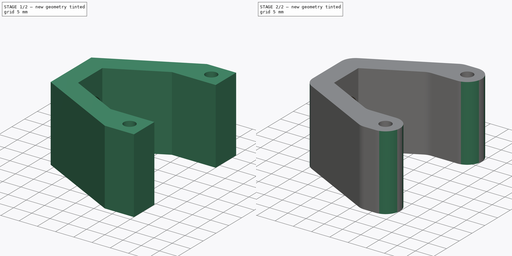
[diagram: build sequence overview — one tinted view per stage of 2, left to right]
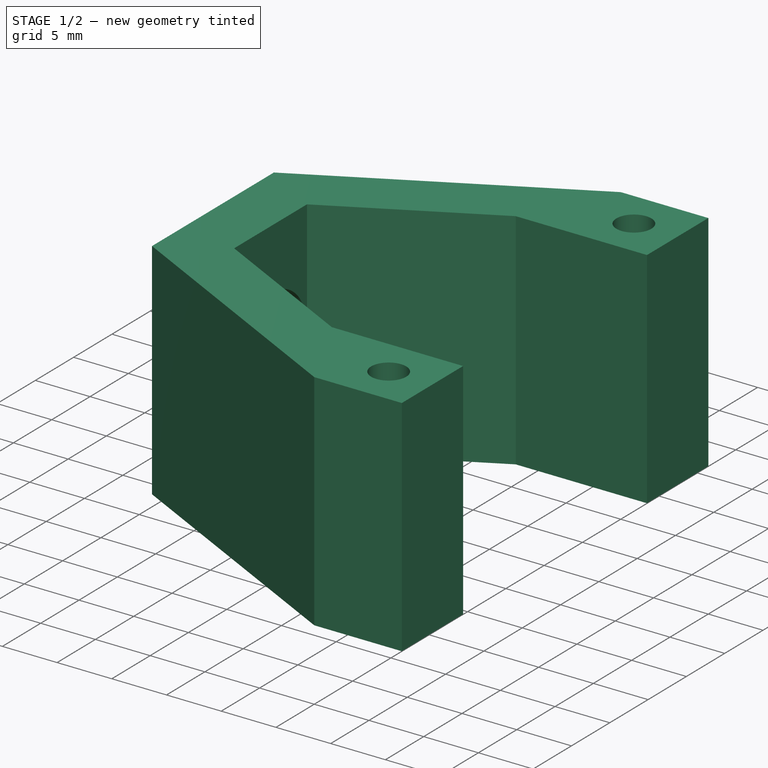
[diagram: stage 1 of 2 — iso view after this stage's code; geometry added in this stage tinted green]
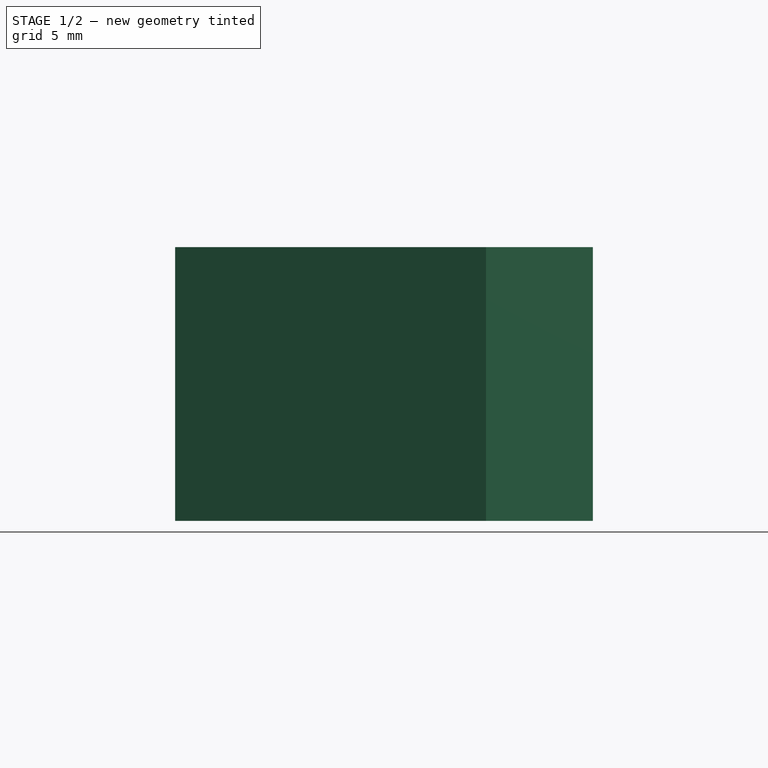
[diagram: stage 1 of 2 — front view after this stage's code; geometry added in this stage tinted green]
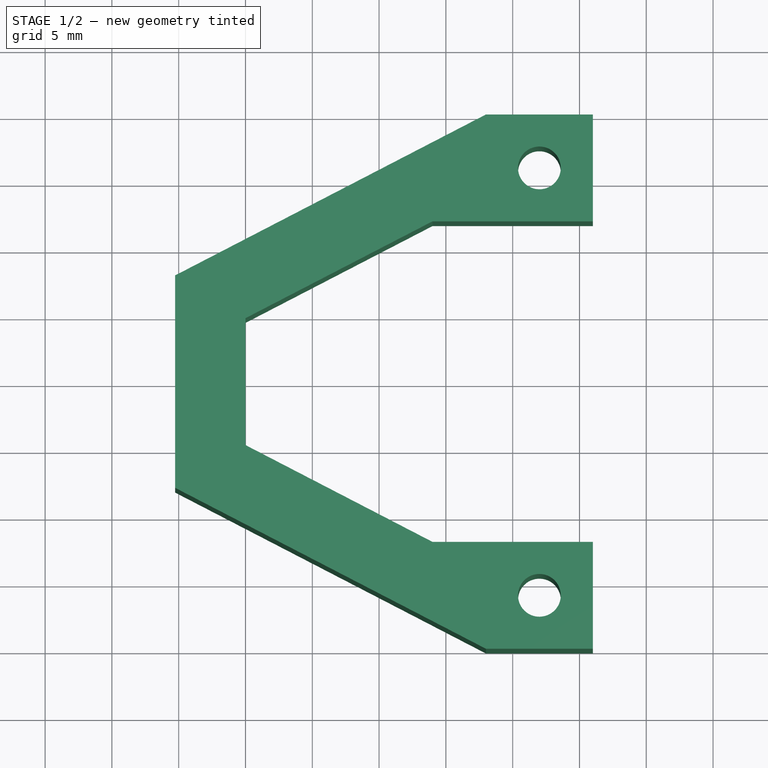
[diagram: stage 1 of 2 — top view after this stage's code; geometry added in this stage tinted green]
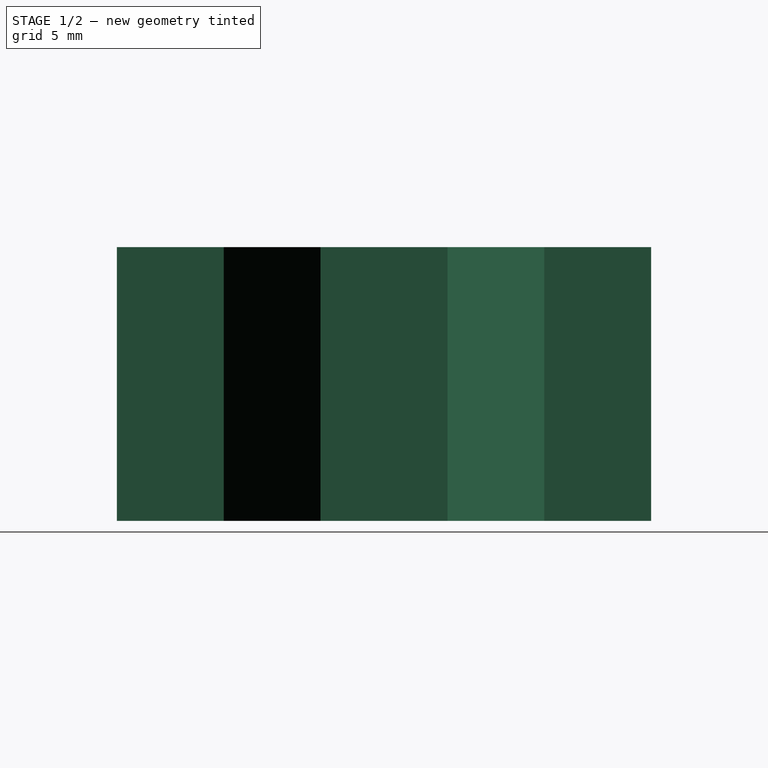
[diagram: stage 1 of 2 — right view after this stage's code; geometry added in this stage tinted green]
FCSTD DOCUMENT  (FreeCAD 0.18R14014 (Git))
Label: FrontStand_H20.5mm
License: All rights reserved
LicenseURL: http://en.wikipedia.org/wiki/All_rights_reserved
objects: Sketcher::SketchObject×2, PartDesign::Fillet×2, PartDesign::Pad×1, PartDesign::Pocket×1, PartDesign::Body×1, App::Part×1
note: 9 computed .brp shape members not serialized (recipe doc carries the construction recipe); baked Part::Feature solids carry a one-line shape summary decoded from their .brp

FEATURE [Sketcher::SketchObject] Sketch  label="FS_BaseSketch"
  MapMode = 5
  Support = -> [XY_Plane001]
  sketch-geometry (20):
    g0: LineSegment StartX=18 StartY=20 StartZ=0 EndX=26 EndY=20 EndZ=0
    g1: LineSegment StartX=26 StartY=20 StartZ=0 EndX=26 EndY=12 EndZ=0
    g2: LineSegment StartX=26 StartY=12 StartZ=0 EndX=18 EndY=12 EndZ=0
    g3: LineSegment StartX=18 StartY=20 StartZ=0 EndX=-5.26454 EndY=7.95229 EndZ=0
    g4: LineSegment StartX=0 StartY=4.75 StartZ=0 EndX=0 EndY=-4.75 EndZ=0
    g5: LineSegment StartX=-5.26454 StartY=7.95229 StartZ=0 EndX=-5.26454 EndY=-7.95229 EndZ=0
    g6: LineSegment StartX=18 StartY=-20 StartZ=0 EndX=26 EndY=-20 EndZ=0
    g7: LineSegment StartX=26 StartY=-20 StartZ=0 EndX=26 EndY=-12 EndZ=0
    g8: LineSegment StartX=26 StartY=-12 StartZ=0 EndX=18 EndY=-12 EndZ=0
    g9: LineSegment StartX=18 StartY=-20 StartZ=0 EndX=-5.26454 EndY=-7.95229 EndZ=0
    g10: Circle CenterX=22 CenterY=16 CenterZ=0 NormalX=0 NormalY=0 NormalZ=1 AngleXU=0 Radius=1.6
    g11: Circle CenterX=22 CenterY=-16 CenterZ=0 NormalX=0 NormalY=0 NormalZ=1 AngleXU=0 Radius=1.6
    g12: LineSegment [constr] StartX=22 StartY=16 StartZ=0 EndX=26 EndY=16 EndZ=0
    g13: LineSegment [constr] StartX=22 StartY=16 StartZ=0 EndX=22 EndY=20 EndZ=0
    g14: LineSegment StartX=0 StartY=4.75 StartZ=0 EndX=14 EndY=12 EndZ=0
    g15: LineSegment StartX=14 StartY=12 StartZ=0 EndX=18 EndY=12 EndZ=0
    g16: LineSegment StartX=18 StartY=-12 StartZ=0 EndX=14 EndY=-12 EndZ=0
    g17: LineSegment StartX=14 StartY=-12 StartZ=0 EndX=0 EndY=-4.75 EndZ=0
    g18: LineSegment [constr] StartX=0 StartY=4.75 StartZ=0 EndX=-2.42092 EndY=9.42488 EndZ=0
    g19: LineSegment [constr] StartX=0 StartY=4.75 StartZ=0 EndX=-5.26454 EndY=4.75 EndZ=0
  constraints (56):
    c: Horizontal(g0)
    c: Coincident(g1,g0)
    c: Vertical(g1)
    c: Coincident(g2,g1)
    c: Horizontal(g2)
    c: Coincident(g3,g0)
    c: Coincident(g5,g3)
    c: Coincident(g7,g6)
    c: Coincident(g8,g7)
    c: Coincident(g9,g6)
    c: Coincident(g5,g9)
    c: Symmetric(g1,g7,g-1)
    c: Vertical(g7)
    c: Horizontal(g8)
    c: Horizontal(g6)
    c: Equal(g0,g1)
    c: Equal(g1,g2)
    c: Equal(g2,g8)
    c: Equal(g8,g7)
    c: Equal(g7,g6)
    c: Symmetric(g4,g4,g-1)
    c: Symmetric(g3,g5,g-1)
    c: Distance(g0) = 8
    c: Distance(g0,g6) = 40
    c: PointOnObject(g4,g-2)
    c: Distance(g4,g4) = 9.5
    c: Equal(g10,g11)
    c: Radius(g10) = 1.6
    c: Coincident(g12,g10)
    c: PointOnObject(g12,g1)
    c: Coincident(g13,g10)
    c: PointOnObject(g13,g0)
    c: Equal(g13,g12)
    c: Symmetric(g10,g11,g-1)
    c: Horizontal(g12)
    c: Vertical(g13)
    c: Distance(g12) = 4
    c: Coincident(g14,g4)
    c: Coincident(g15,g14)
    c: Horizontal(g15)
    c: Coincident(g16,g8)
    c: Horizontal(g16)
    c: Coincident(g17,g16)
    c: Coincident(g17,g4)
    c: Equal(g16,g15)
    c: Distance(g15) = 4
    c: Parallel(g14,g3)
    c: Coincident(g15,g2)
    c: DistanceX(g4,g2) = 18
    c: Coincident(g18,g4)
    c: PointOnObject(g18,g3)
    c: Perpendicular(g3,g18)
    c: Coincident(g19,g4)
    c: PointOnObject(g19,g5)
    c: Perpendicular(g5,g19)
    c: Equal(g19,g18)
FEATURE [PartDesign::Pad] Pad  label="FS_BasePad"
  Length = 20.5
  Length2 = 100
  Profile = -> Sketch
  Type = 0
FEATURE [Sketcher::SketchObject] Sketch001  label="FS_SpringHoleSketch"
  ExternalGeometry = -> [Pad]
  MapMode = 5
  Placement = pos=(0,0,0) rot=(0.57735,0.57735,0.57735;2.0944rad)
  Support = -> [YZ_Plane001]
  sketch-geometry (3):
    g0: Circle CenterX=0 CenterY=10.25 CenterZ=0 NormalX=0 NormalY=0 NormalZ=1 AngleXU=0 Radius=4.75
    g1: LineSegment [constr] StartX=0 StartY=10.25 StartZ=0 EndX=0 EndY=20.5 EndZ=0
    g2: LineSegment [constr] StartX=0 StartY=10.25 StartZ=0 EndX=0 EndY=0 EndZ=0
  constraints (8):
    c: PointOnObject(g0,g-2)
    c: Coincident(g1,g0)
    c: PointOnObject(g1,g-3)
    c: Vertical(g1)
    c: Coincident(g2,g0)
    c: Coincident(g2,g-1)
    c: Equal(g1,g2)
    c: Radius(g0) = 4.75
FEATURE [PartDesign::Pocket] Pocket  label="FS_SpringHolePocket"
  BaseFeature = -> Pad
  Length = 1
  Length2 = 100
  Profile = -> Sketch001
  Type = 0
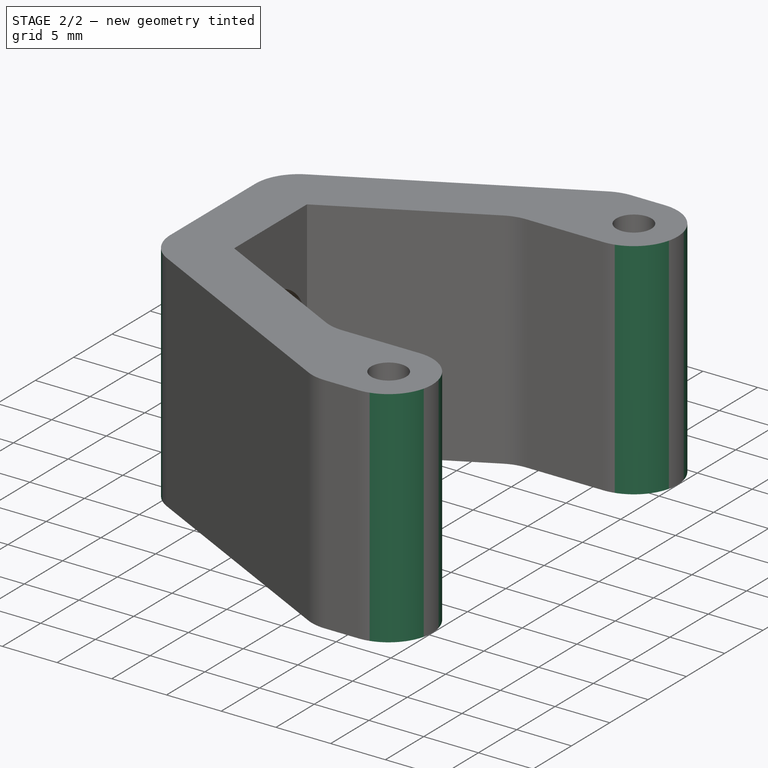
[diagram: stage 2 of 2 — iso view after this stage's code; geometry added in this stage tinted green]
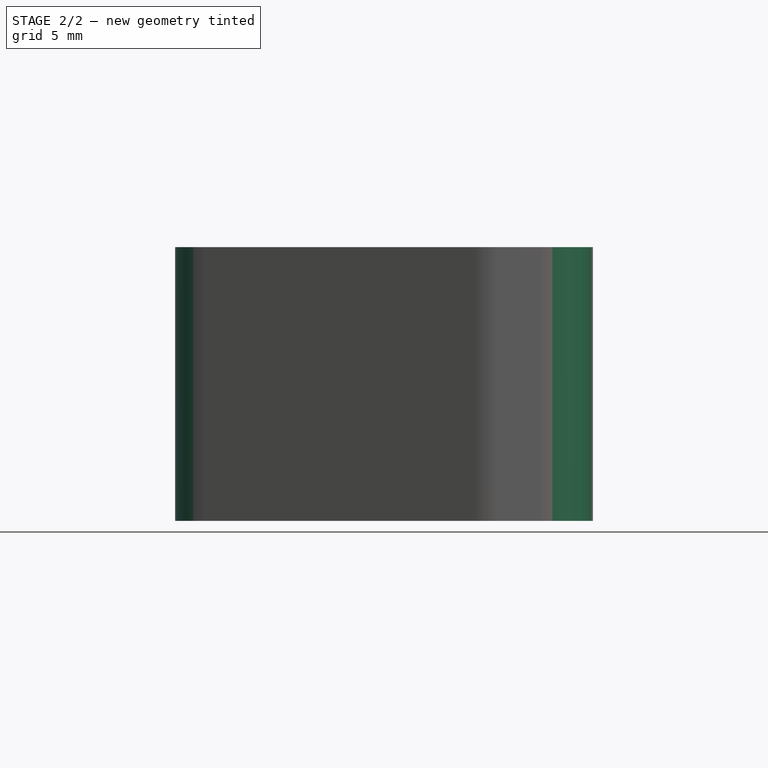
[diagram: stage 2 of 2 — front view after this stage's code; geometry added in this stage tinted green]
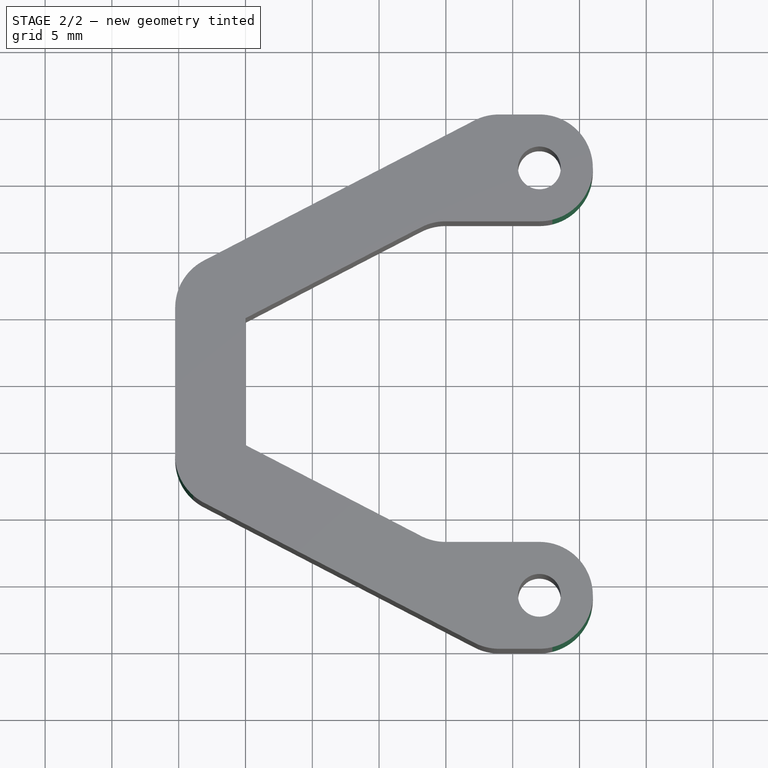
[diagram: stage 2 of 2 — top view after this stage's code; geometry added in this stage tinted green]
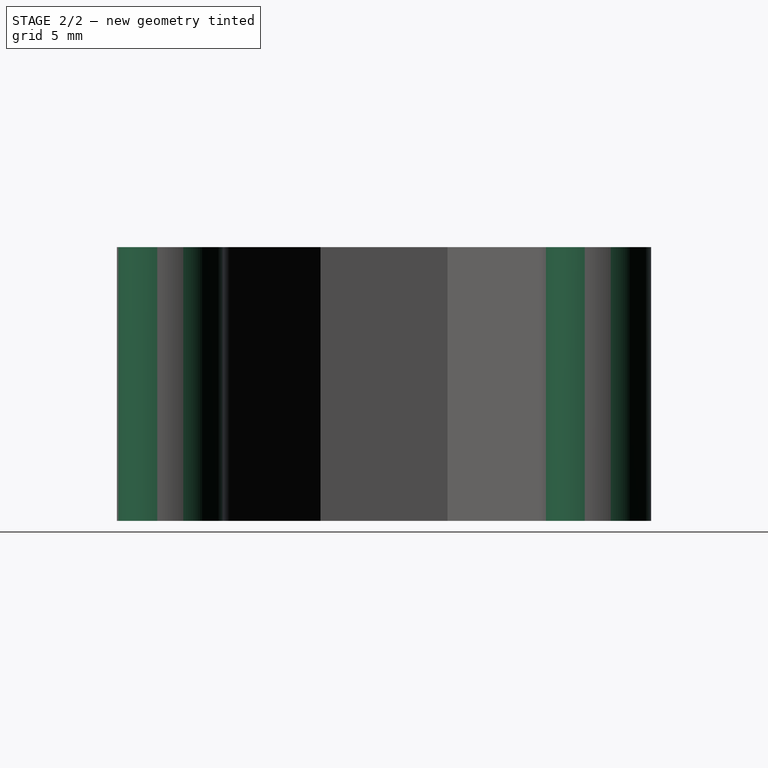
[diagram: stage 2 of 2 — right view after this stage's code; geometry added in this stage tinted green]
FEATURE [PartDesign::Fillet] Fillet  label="FS_ExtFillet"
  Base = -> Pocket [Edge5,Edge1,Edge2,Edge8,Edge38,Edge39]
  BaseFeature = -> Pocket
  Radius = 4
FEATURE [PartDesign::Fillet] Fillet001  label="FS_IntFillet"
  Base = -> Fillet [Edge53,Edge57,Edge66,Edge64]
  BaseFeature = -> Fillet
  Radius = 3.9999
FEATURE [PartDesign::Body] Body  label="FrontStandBody"
  Group = -> [Sketch,Pad,Sketch001,Pocket,Fillet,Fillet001]
  Origin = -> Origin001
  Tip = -> Fillet001
FEATURE [App::Part] Part  label="FrontStandPart"
  Group = -> [Body]
  License = CC BY 3.0
  LicenseURL = http://creativecommons.org/licenses/by/3.0/
  Origin = -> Origin
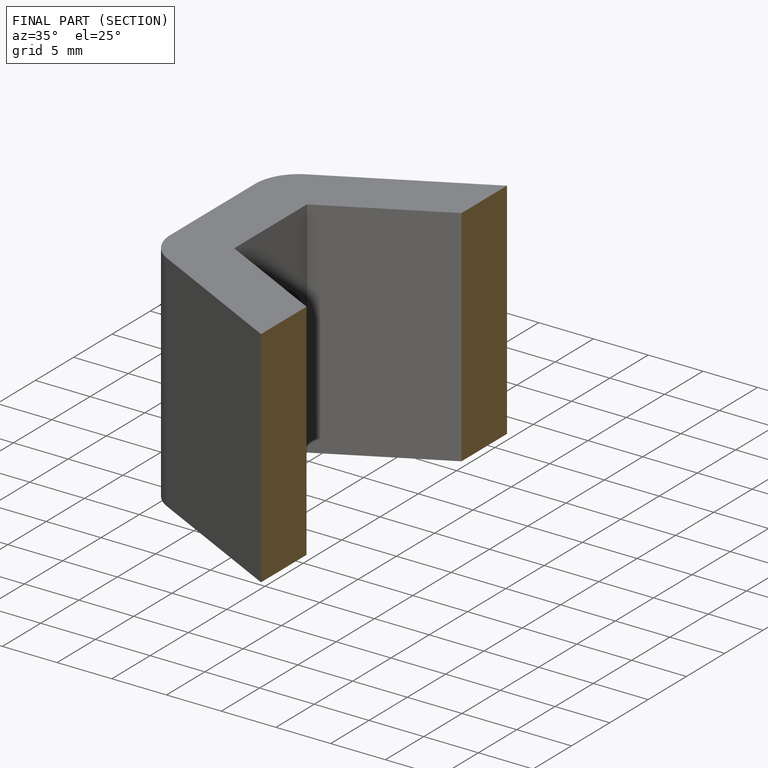
[diagram: finished part — half-section view (interior)]
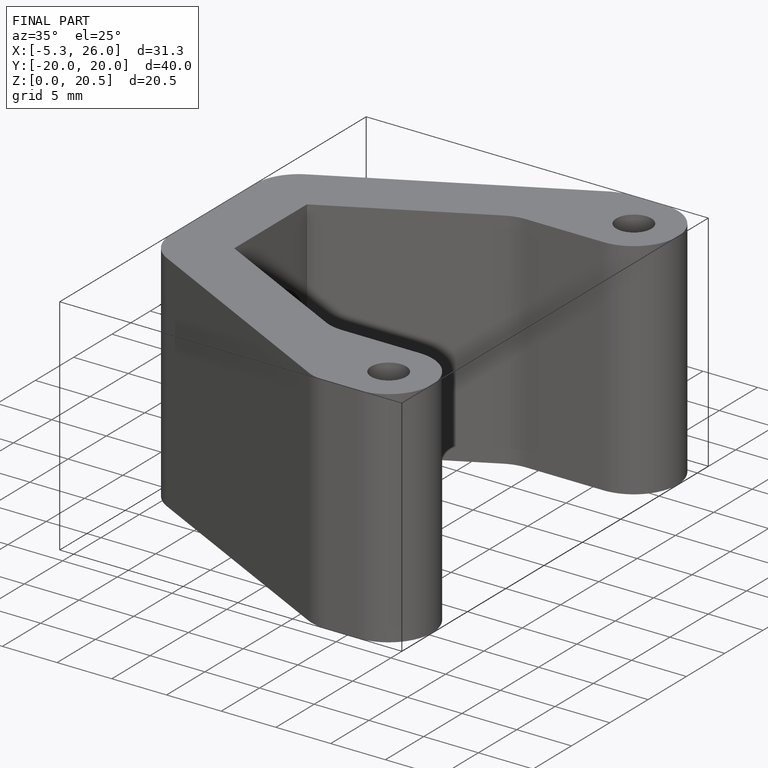
[diagram: finished part — iso view with bounding-box wireframe]
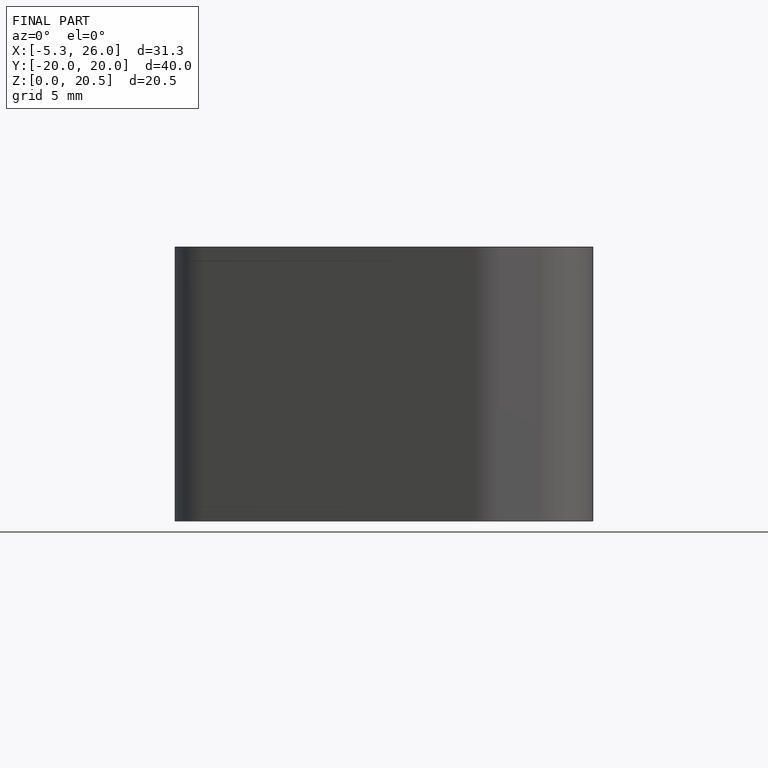
[diagram: finished part — front view with bounding-box wireframe]
